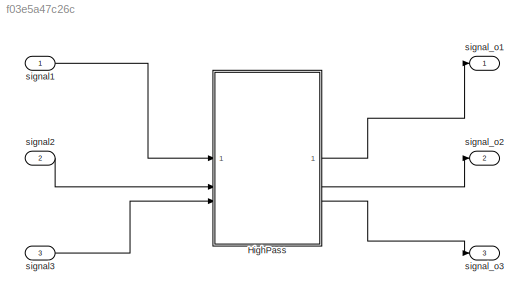
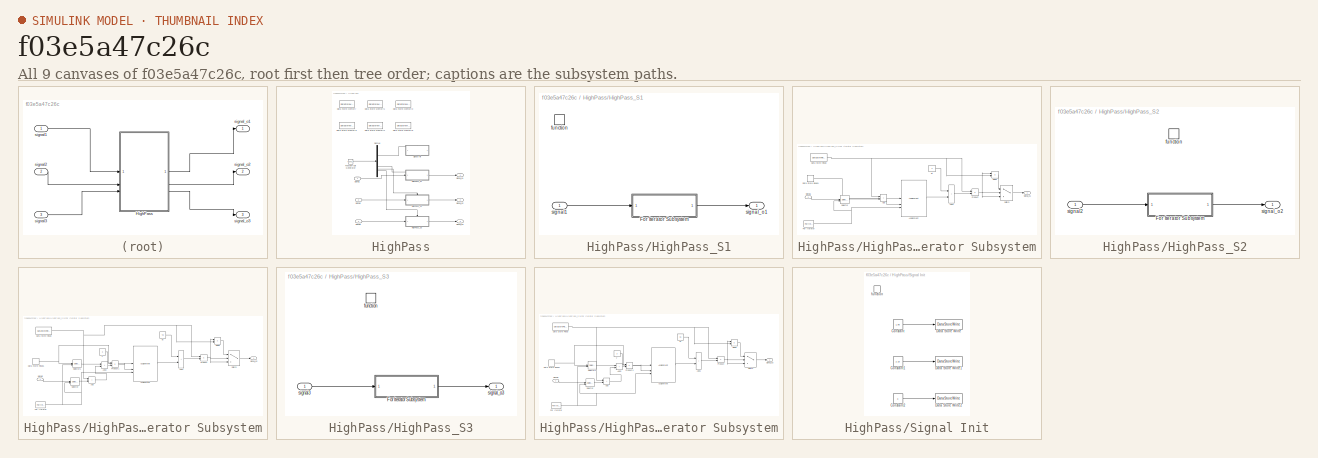
[diagram: thumbnail index - all 9 canvases of the model, root first then tree order]
MODEL slx_f03e5a47c26c
KIND model
CONFIG AbsTol = auto
CONFIG EnableMultiTasking = off
CONFIG FixedStep = auto
CONFIG MaxStep = auto
CONFIG MinStep = auto
CONFIG RelTol = 1e-3
CONFIG SampleTimeConstraint = Unconstrained
CONFIG SolverName = VariableStepAuto
CONFIG StartTime = 0.0
CONFIG StopTime = 10.0
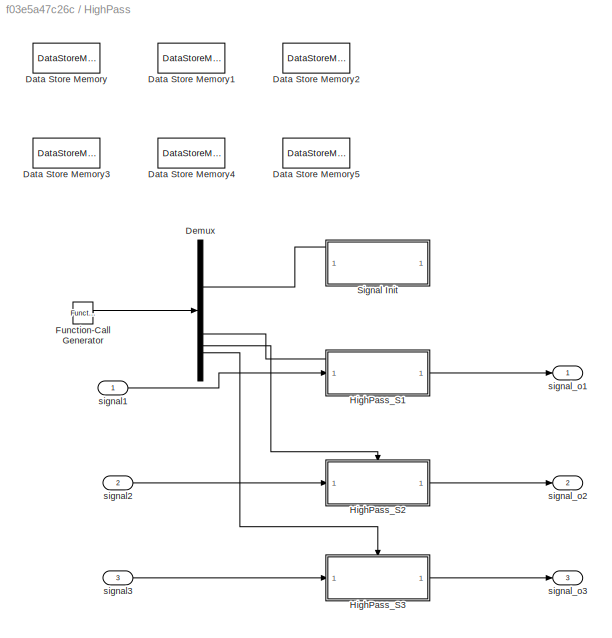
BLOCK [SubSystem] HighPass
BLOCK [DataStoreMemory] HighPass/Data Store Memory
  DataStoreName = default_hp1
  ShowAdditionalParam = off
  WriteAfterWriteMsg = warning
BLOCK [DataStoreMemory] HighPass/Data Store Memory1
  DataStoreName = default_hp2
  ShowAdditionalParam = off
  WriteAfterWriteMsg = warning
BLOCK [DataStoreMemory] HighPass/Data Store Memory2
  DataStoreName = default_hp3
  ShowAdditionalParam = off
  WriteAfterWriteMsg = warning
BLOCK [DataStoreMemory] HighPass/Data Store Memory3
  DataStoreName = S1
  Dimensions = length
  ShowAdditionalParam = off
  WriteAfterWriteMsg = warning
BLOCK [DataStoreMemory] HighPass/Data Store Memory4
  DataStoreName = S2
  Dimensions = length
  ShowAdditionalParam = off
  WriteAfterWriteMsg = warning
BLOCK [DataStoreMemory] HighPass/Data Store Memory5
  DataStoreName = S3
  Dimensions = length
  ShowAdditionalParam = off
  WriteAfterWriteMsg = warning
BLOCK [Demux] HighPass/Demux
BLOCK [Reference] HighPass/Function-Call Generator  REF=simulink/Ports &
Subsystems/Function-Call
Generator
  SourceBlock = simulink/Ports &\nSubsystems/Function-Call\nGenerator
  SourceType = Function-Call Generator
BLOCK [SubSystem] HighPass/HighPass_S1
  TreatAsAtomicUnit = on
BLOCK [SubSystem] HighPass/HighPass_S1/For Iterator Subsystem
  TreatAsAtomicUnit = on
BLOCK [Sum] HighPass/HighPass_S1/For Iterator Subsystem/Add
  IconShape = rectangular
BLOCK [Sum] HighPass/HighPass_S1/For Iterator Subsystem/Add1
  IconShape = rectangular
BLOCK [Assignment] HighPass/HighPass_S1/For Iterator Subsystem/Assignment
  DiagnosticForDimensions = Warning
  IndexMode = Zero-based
  IndexOptions = Index vector (port)
  Indices = 1
  OutputSizes = 1
BLOCK [DataStoreRead] HighPass/HighPass_S1/For Iterator Subsystem/Data Store Read
  DataStoreName = default_hp1
  IndexOptions = Index vector (dialog)
  Indices = 1
  OutputSizes = 1
BLOCK [DataStoreRead] HighPass/HighPass_S1/For Iterator Subsystem/Data Store Read1
  DataStoreName = S1
  IndexOptions = Index vector (dialog)
  Indices = 1
  OutputSizes = 1
BLOCK [Product] HighPass/HighPass_S1/For Iterator Subsystem/Divide
  Inputs = */
BLOCK [ForIterator] HighPass/HighPass_S1/For Iterator Subsystem/For Iterator
  IndexMode = Zero-based
  IterationLimit = length
BLOCK [Product] HighPass/HighPass_S1/For Iterator Subsystem/Product
BLOCK [Selector] HighPass/HighPass_S1/For Iterator Subsystem/Selector
  IndexMode = Zero-based
  IndexOptions = Index vector (port)
  Indices = [1 3]
  InputPortWidth = length
  OutputSizes = 1
BLOCK [Switch] HighPass/HighPass_S1/For Iterator Subsystem/Switch
  Criteria = u2 > Threshold
  InputSameDT = off
  SaturateOnIntegerOverflow = off
  Threshold = 17.13
BLOCK [Constant] HighPass/HighPass_S1/For Iterator Subsystem/dt
  Value = 3
BLOCK [Inport] HighPass/HighPass_S1/For Iterator Subsystem/signal1
BLOCK [Outport] HighPass/HighPass_S1/For Iterator Subsystem/signal_o1
BLOCK [TriggerPort] HighPass/HighPass_S1/function
  StatesWhenEnabling = held
  TriggerType = function-call
  VariantControl = (inherit)
BLOCK [Inport] HighPass/HighPass_S1/signal1
BLOCK [Outport] HighPass/HighPass_S1/signal_o1
BLOCK [SubSystem] HighPass/HighPass_S2
  TreatAsAtomicUnit = on
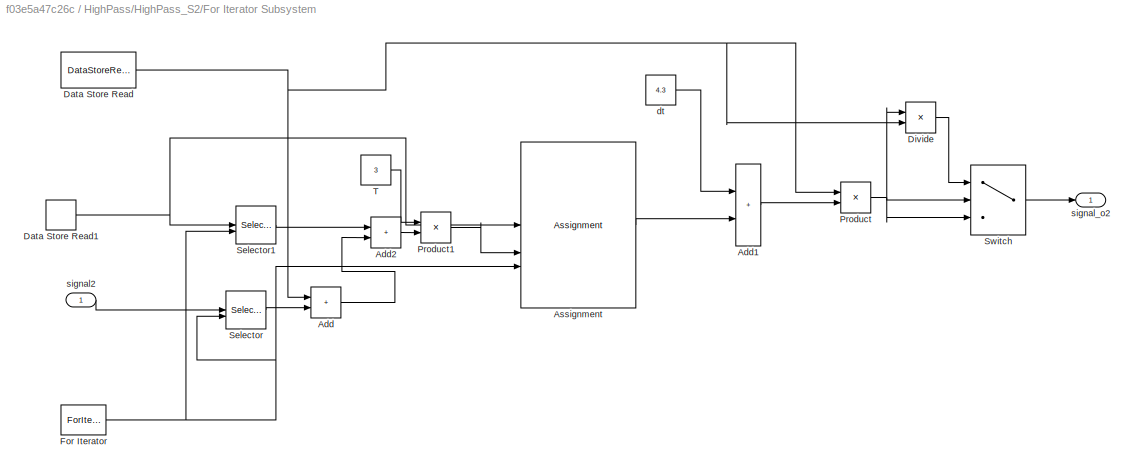
BLOCK [SubSystem] HighPass/HighPass_S2/For Iterator Subsystem
  TreatAsAtomicUnit = on
BLOCK [Sum] HighPass/HighPass_S2/For Iterator Subsystem/Add
  IconShape = rectangular
BLOCK [Sum] HighPass/HighPass_S2/For Iterator Subsystem/Add1
  IconShape = rectangular
BLOCK [Sum] HighPass/HighPass_S2/For Iterator Subsystem/Add2
  IconShape = rectangular
BLOCK [Assignment] HighPass/HighPass_S2/For Iterator Subsystem/Assignment
  DiagnosticForDimensions = Warning
  IndexMode = Zero-based
  IndexOptions = Index vector (port)
  Indices = 1
  OutputSizes = 1
BLOCK [DataStoreRead] HighPass/HighPass_S2/For Iterator Subsystem/Data Store Read
  DataStoreName = default_hp2
  IndexOptions = Index vector (dialog)
  Indices = 1
  OutputSizes = 1
BLOCK [DataStoreRead] HighPass/HighPass_S2/For Iterator Subsystem/Data Store Read1
  DataStoreName = S2
  IndexOptions = Index vector (dialog)
  Indices = 1
  OutputSizes = 1
BLOCK [Product] HighPass/HighPass_S2/For Iterator Subsystem/Divide
  Inputs = */
BLOCK [ForIterator] HighPass/HighPass_S2/For Iterator Subsystem/For Iterator
  IndexMode = Zero-based
  IterationLimit = length
BLOCK [Product] HighPass/HighPass_S2/For Iterator Subsystem/Product
BLOCK [Product] HighPass/HighPass_S2/For Iterator Subsystem/Product1
BLOCK [Selector] HighPass/HighPass_S2/For Iterator Subsystem/Selector
  IndexMode = Zero-based
  IndexOptions = Index vector (port)
  Indices = [1 3]
  InputPortWidth = length
  OutputSizes = 1
BLOCK [Selector] HighPass/HighPass_S2/For Iterator Subsystem/Selector1
  IndexMode = Zero-based
  IndexOptions = Index vector (port)
  Indices = [1 3]
  InputPortWidth = length
  OutputSizes = 1
BLOCK [Switch] HighPass/HighPass_S2/For Iterator Subsystem/Switch
  Criteria = u2 > Threshold
  InputSameDT = off
  SaturateOnIntegerOverflow = off
  Threshold = 17.13
BLOCK [Constant] HighPass/HighPass_S2/For Iterator Subsystem/T
  Value = 3
BLOCK [Constant] HighPass/HighPass_S2/For Iterator Subsystem/dt
  Value = 4.3
BLOCK [Inport] HighPass/HighPass_S2/For Iterator Subsystem/signal2
BLOCK [Outport] HighPass/HighPass_S2/For Iterator Subsystem/signal_o2
BLOCK [TriggerPort] HighPass/HighPass_S2/function
  StatesWhenEnabling = held
  TriggerType = function-call
  VariantControl = (inherit)
BLOCK [Inport] HighPass/HighPass_S2/signal2
BLOCK [Outport] HighPass/HighPass_S2/signal_o2
BLOCK [SubSystem] HighPass/HighPass_S3
  TreatAsAtomicUnit = on
BLOCK [SubSystem] HighPass/HighPass_S3/For Iterator Subsystem
  TreatAsAtomicUnit = on
BLOCK [Sum] HighPass/HighPass_S3/For Iterator Subsystem/Add
  IconShape = rectangular
BLOCK [Sum] HighPass/HighPass_S3/For Iterator Subsystem/Add1
  IconShape = rectangular
BLOCK [Sum] HighPass/HighPass_S3/For Iterator Subsystem/Add2
  IconShape = rectangular
BLOCK [Assignment] HighPass/HighPass_S3/For Iterator Subsystem/Assignment
  DiagnosticForDimensions = Warning
  IndexMode = Zero-based
  IndexOptions = Index vector (port)
  Indices = 1
  OutputSizes = 1
BLOCK [DataStoreRead] HighPass/HighPass_S3/For Iterator Subsystem/Data Store Read
  DataStoreName = default_hp3
  IndexOptions = Index vector (dialog)
  Indices = 1
  OutputSizes = 1
BLOCK [DataStoreRead] HighPass/HighPass_S3/For Iterator Subsystem/Data Store Read1
  DataStoreName = S3
  IndexOptions = Index vector (dialog)
  Indices = 1
  OutputSizes = 1
BLOCK [Product] HighPass/HighPass_S3/For Iterator Subsystem/Divide
  Inputs = */
BLOCK [ForIterator] HighPass/HighPass_S3/For Iterator Subsystem/For Iterator
  IndexMode = Zero-based
  IterationLimit = length
BLOCK [Product] HighPass/HighPass_S3/For Iterator Subsystem/Product
BLOCK [Product] HighPass/HighPass_S3/For Iterator Subsystem/Product1
BLOCK [Selector] HighPass/HighPass_S3/For Iterator Subsystem/Selector
  IndexMode = Zero-based
  IndexOptions = Index vector (port)
  Indices = [1 3]
  InputPortWidth = length
  OutputSizes = 1
BLOCK [Selector] HighPass/HighPass_S3/For Iterator Subsystem/Selector1
  IndexMode = Zero-based
  IndexOptions = Index vector (port)
  Indices = [1 3]
  InputPortWidth = length
  OutputSizes = 1
BLOCK [Switch] HighPass/HighPass_S3/For Iterator Subsystem/Switch
  Criteria = u2 > Threshold
  InputSameDT = off
  SaturateOnIntegerOverflow = off
  Threshold = 17.13
BLOCK [Constant] HighPass/HighPass_S3/For Iterator Subsystem/T
  Value = 3
BLOCK [Constant] HighPass/HighPass_S3/For Iterator Subsystem/dt
  Value = 3.1
BLOCK [Inport] HighPass/HighPass_S3/For Iterator Subsystem/signal3
BLOCK [Outport] HighPass/HighPass_S3/For Iterator Subsystem/signal_o3
BLOCK [TriggerPort] HighPass/HighPass_S3/function
  StatesWhenEnabling = held
  TriggerType = function-call
  VariantControl = (inherit)
BLOCK [Inport] HighPass/HighPass_S3/signal3
BLOCK [Outport] HighPass/HighPass_S3/signal_o3
BLOCK [SubSystem] HighPass/Signal Init
  TreatAsAtomicUnit = on
BLOCK [Constant] HighPass/Signal Init/Constant
  OutDataTypeStr = single
  Value = 1.95
BLOCK [Constant] HighPass/Signal Init/Constant1
  OutDataTypeStr = single
  Value = 2.15
BLOCK [Constant] HighPass/Signal Init/Constant2
  OutDataTypeStr = single
  Value = 3
BLOCK [DataStoreWrite] HighPass/Signal Init/Data Store Write
  DataStoreName = default_hp1
  IndexOptions = Index vector (dialog)
  Indices = 1
  OutputSizes = 1
BLOCK [DataStoreWrite] HighPass/Signal Init/Data Store Write1
  DataStoreName = default_hp2
  IndexOptions = Index vector (dialog)
  Indices = 1
  OutputSizes = 1
BLOCK [DataStoreWrite] HighPass/Signal Init/Data Store Write2
  DataStoreName = default_hp3
  IndexOptions = Index vector (dialog)
  Indices = 1
  OutputSizes = 1
BLOCK [TriggerPort] HighPass/Signal Init/function
  StatesWhenEnabling = held
  TriggerType = function-call
  VariantControl = (inherit)
BLOCK [Inport] HighPass/signal1
  PortDimensions = length
BLOCK [Inport] HighPass/signal2
  Port = 2
  PortDimensions = length
BLOCK [Inport] HighPass/signal3
  Port = 3
  PortDimensions = length
BLOCK [Outport] HighPass/signal_o1
BLOCK [Outport] HighPass/signal_o2
  Port = 2
BLOCK [Outport] HighPass/signal_o3
  Port = 3
BLOCK [Inport] signal1
  PortDimensions = 32
BLOCK [Inport] signal2
  Port = 2
  PortDimensions = 32
BLOCK [Inport] signal3
  Port = 3
  PortDimensions = 32
BLOCK [Outport] signal_o1
BLOCK [Outport] signal_o2
  Port = 2
BLOCK [Outport] signal_o3
  Port = 3
LINE HighPass/Demux:1 -> HighPass/Signal Init:trigger
LINE HighPass/Demux:2 -> HighPass/HighPass_S1:trigger
LINE HighPass/Demux:3 -> HighPass/HighPass_S2:trigger
LINE HighPass/Demux:4 -> HighPass/HighPass_S3:trigger
LINE HighPass/Function-Call Generator:1 -> HighPass/Demux:1
LINE HighPass/HighPass_S1/For Iterator Subsystem/Add1:1 -> HighPass/HighPass_S1/For Iterator Subsystem/Product:2
LINE HighPass/HighPass_S1/For Iterator Subsystem/Add:1 -> HighPass/HighPass_S1/For Iterator Subsystem/Assignment:2
LINE HighPass/HighPass_S1/For Iterator Subsystem/Assignment:1 -> HighPass/HighPass_S1/For Iterator Subsystem/Add1:2
LINE HighPass/HighPass_S1/For Iterator Subsystem/Data Store Read1:1 -> HighPass/HighPass_S1/For Iterator Subsystem/Assignment:1
NET HighPass/HighPass_S1/For Iterator Subsystem/Data Store Read:1 -> HighPass/HighPass_S1/For Iterator Subsystem/Add:1, HighPass/HighPass_S1/For Iterator Subsystem/Divide:2, HighPass/HighPass_S1/For Iterator Subsystem/Product:1
LINE HighPass/HighPass_S1/For Iterator Subsystem/Divide:1 -> HighPass/HighPass_S1/For Iterator Subsystem/Switch:1
NET HighPass/HighPass_S1/For Iterator Subsystem/For Iterator:1 -> HighPass/HighPass_S1/For Iterator Subsystem/Assignment:3, HighPass/HighPass_S1/For Iterator Subsystem/Selector:2
NET HighPass/HighPass_S1/For Iterator Subsystem/Product:1 -> HighPass/HighPass_S1/For Iterator Subsystem/Divide:1, HighPass/HighPass_S1/For Iterator Subsystem/Switch:2, HighPass/HighPass_S1/For Iterator Subsystem/Switch:3
LINE HighPass/HighPass_S1/For Iterator Subsystem/Selector:1 -> HighPass/HighPass_S1/For Iterator Subsystem/Add:2
LINE HighPass/HighPass_S1/For Iterator Subsystem/Switch:1 -> HighPass/HighPass_S1/For Iterator Subsystem/signal_o1:1
LINE HighPass/HighPass_S1/For Iterator Subsystem/dt:1 -> HighPass/HighPass_S1/For Iterator Subsystem/Add1:1
LINE HighPass/HighPass_S1/For Iterator Subsystem/signal1:1 -> HighPass/HighPass_S1/For Iterator Subsystem/Selector:1
LINE HighPass/HighPass_S1/For Iterator Subsystem:1 -> HighPass/HighPass_S1/signal_o1:1
LINE HighPass/HighPass_S1/signal1:1 -> HighPass/HighPass_S1/For Iterator Subsystem:1
LINE HighPass/HighPass_S1:1 -> HighPass/signal_o1:1
LINE HighPass/HighPass_S2/For Iterator Subsystem/Add1:1 -> HighPass/HighPass_S2/For Iterator Subsystem/Product:2
LINE HighPass/HighPass_S2/For Iterator Subsystem/Add2:1 -> HighPass/HighPass_S2/For Iterator Subsystem/Product1:2
LINE HighPass/HighPass_S2/For Iterator Subsystem/Add:1 -> HighPass/HighPass_S2/For Iterator Subsystem/Add2:2
LINE HighPass/HighPass_S2/For Iterator Subsystem/Assignment:1 -> HighPass/HighPass_S2/For Iterator Subsystem/Add1:2
NET HighPass/HighPass_S2/For Iterator Subsystem/Data Store Read1:1 -> HighPass/HighPass_S2/For Iterator Subsystem/Assignment:1, HighPass/HighPass_S2/For Iterator Subsystem/Selector1:1
NET HighPass/HighPass_S2/For Iterator Subsystem/Data Store Read:1 -> HighPass/HighPass_S2/For Iterator Subsystem/Add:1, HighPass/HighPass_S2/For Iterator Subsystem/Divide:2, HighPass/HighPass_S2/For Iterator Subsystem/Product:1
LINE HighPass/HighPass_S2/For Iterator Subsystem/Divide:1 -> HighPass/HighPass_S2/For Iterator Subsystem/Switch:1
NET HighPass/HighPass_S2/For Iterator Subsystem/For Iterator:1 -> HighPass/HighPass_S2/For Iterator Subsystem/Assignment:3, HighPass/HighPass_S2/For Iterator Subsystem/Selector1:2, HighPass/HighPass_S2/For Iterator Subsystem/Selector:2
LINE HighPass/HighPass_S2/For Iterator Subsystem/Product1:1 -> HighPass/HighPass_S2/For Iterator Subsystem/Assignment:2
NET HighPass/HighPass_S2/For Iterator Subsystem/Product:1 -> HighPass/HighPass_S2/For Iterator Subsystem/Divide:1, HighPass/HighPass_S2/For Iterator Subsystem/Switch:2, HighPass/HighPass_S2/For Iterator Subsystem/Switch:3
LINE HighPass/HighPass_S2/For Iterator Subsystem/Selector1:1 -> HighPass/HighPass_S2/For Iterator Subsystem/Add2:1
LINE HighPass/HighPass_S2/For Iterator Subsystem/Selector:1 -> HighPass/HighPass_S2/For Iterator Subsystem/Add:2
LINE HighPass/HighPass_S2/For Iterator Subsystem/Switch:1 -> HighPass/HighPass_S2/For Iterator Subsystem/signal_o2:1
LINE HighPass/HighPass_S2/For Iterator Subsystem/T:1 -> HighPass/HighPass_S2/For Iterator Subsystem/Product1:1
LINE HighPass/HighPass_S2/For Iterator Subsystem/dt:1 -> HighPass/HighPass_S2/For Iterator Subsystem/Add1:1
LINE HighPass/HighPass_S2/For Iterator Subsystem/signal2:1 -> HighPass/HighPass_S2/For Iterator Subsystem/Selector:1
LINE HighPass/HighPass_S2/For Iterator Subsystem:1 -> HighPass/HighPass_S2/signal_o2:1
LINE HighPass/HighPass_S2/signal2:1 -> HighPass/HighPass_S2/For Iterator Subsystem:1
LINE HighPass/HighPass_S2:1 -> HighPass/signal_o2:1
LINE HighPass/HighPass_S3/For Iterator Subsystem/Add1:1 -> HighPass/HighPass_S3/For Iterator Subsystem/Product:2
LINE HighPass/HighPass_S3/For Iterator Subsystem/Add2:1 -> HighPass/HighPass_S3/For Iterator Subsystem/Product1:2
LINE HighPass/HighPass_S3/For Iterator Subsystem/Add:1 -> HighPass/HighPass_S3/For Iterator Subsystem/Add2:2
LINE HighPass/HighPass_S3/For Iterator Subsystem/Assignment:1 -> HighPass/HighPass_S3/For Iterator Subsystem/Add1:2
NET HighPass/HighPass_S3/For Iterator Subsystem/Data Store Read1:1 -> HighPass/HighPass_S3/For Iterator Subsystem/Assignment:1, HighPass/HighPass_S3/For Iterator Subsystem/Selector1:1
NET HighPass/HighPass_S3/For Iterator Subsystem/Data Store Read:1 -> HighPass/HighPass_S3/For Iterator Subsystem/Add:1, HighPass/HighPass_S3/For Iterator Subsystem/Divide:2, HighPass/HighPass_S3/For Iterator Subsystem/Product:1
LINE HighPass/HighPass_S3/For Iterator Subsystem/Divide:1 -> HighPass/HighPass_S3/For Iterator Subsystem/Switch:1
NET HighPass/HighPass_S3/For Iterator Subsystem/For Iterator:1 -> HighPass/HighPass_S3/For Iterator Subsystem/Assignment:3, HighPass/HighPass_S3/For Iterator Subsystem/Selector1:2, HighPass/HighPass_S3/For Iterator Subsystem/Selector:2
LINE HighPass/HighPass_S3/For Iterator Subsystem/Product1:1 -> HighPass/HighPass_S3/For Iterator Subsystem/Assignment:2
NET HighPass/HighPass_S3/For Iterator Subsystem/Product:1 -> HighPass/HighPass_S3/For Iterator Subsystem/Divide:1, HighPass/HighPass_S3/For Iterator Subsystem/Switch:2, HighPass/HighPass_S3/For Iterator Subsystem/Switch:3
LINE HighPass/HighPass_S3/For Iterator Subsystem/Selector1:1 -> HighPass/HighPass_S3/For Iterator Subsystem/Add2:1
LINE HighPass/HighPass_S3/For Iterator Subsystem/Selector:1 -> HighPass/HighPass_S3/For Iterator Subsystem/Add:2
LINE HighPass/HighPass_S3/For Iterator Subsystem/Switch:1 -> HighPass/HighPass_S3/For Iterator Subsystem/signal_o3:1
LINE HighPass/HighPass_S3/For Iterator Subsystem/T:1 -> HighPass/HighPass_S3/For Iterator Subsystem/Product1:1
LINE HighPass/HighPass_S3/For Iterator Subsystem/dt:1 -> HighPass/HighPass_S3/For Iterator Subsystem/Add1:1
LINE HighPass/HighPass_S3/For Iterator Subsystem/signal3:1 -> HighPass/HighPass_S3/For Iterator Subsystem/Selector:1
LINE HighPass/HighPass_S3/For Iterator Subsystem:1 -> HighPass/HighPass_S3/signal_o3:1
LINE HighPass/HighPass_S3/signal3:1 -> HighPass/HighPass_S3/For Iterator Subsystem:1
LINE HighPass/HighPass_S3:1 -> HighPass/signal_o3:1
LINE HighPass/Signal Init/Constant1:1 -> HighPass/Signal Init/Data Store Write1:1
LINE HighPass/Signal Init/Constant2:1 -> HighPass/Signal Init/Data Store Write2:1
LINE HighPass/Signal Init/Constant:1 -> HighPass/Signal Init/Data Store Write:1
LINE HighPass/signal1:1 -> HighPass/HighPass_S1:1
LINE HighPass/signal2:1 -> HighPass/HighPass_S2:1
LINE HighPass/signal3:1 -> HighPass/HighPass_S3:1
LINE HighPass:1 -> signal_o1:1
LINE HighPass:2 -> signal_o2:1
LINE HighPass:3 -> signal_o3:1
LINE signal1:1 -> HighPass:1
LINE signal2:1 -> HighPass:2
LINE signal3:1 -> HighPass:3
note: NET lines group one-source signal fan-out (src -> all destinations, sorted); 1:1 wires keep LINE
